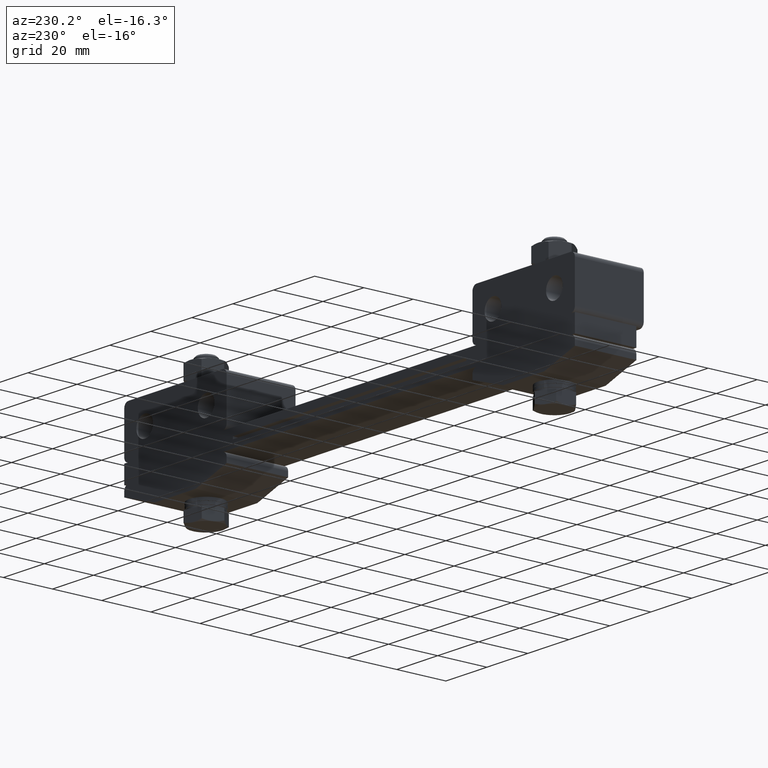
[diagram: clean part render]
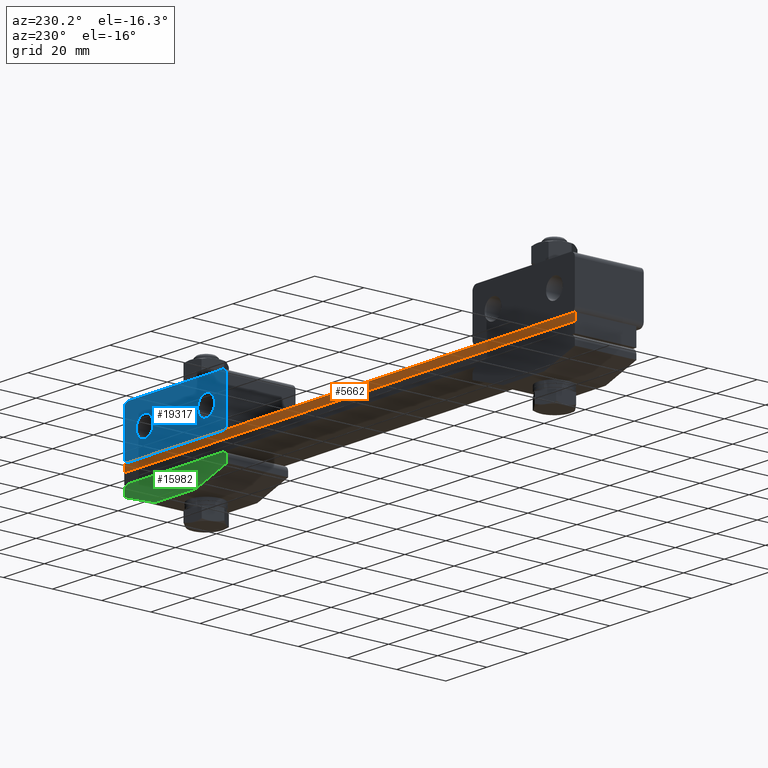
[diagram: same view with three faces highlighted in distinct colors, each labeled with its STEP entity id]
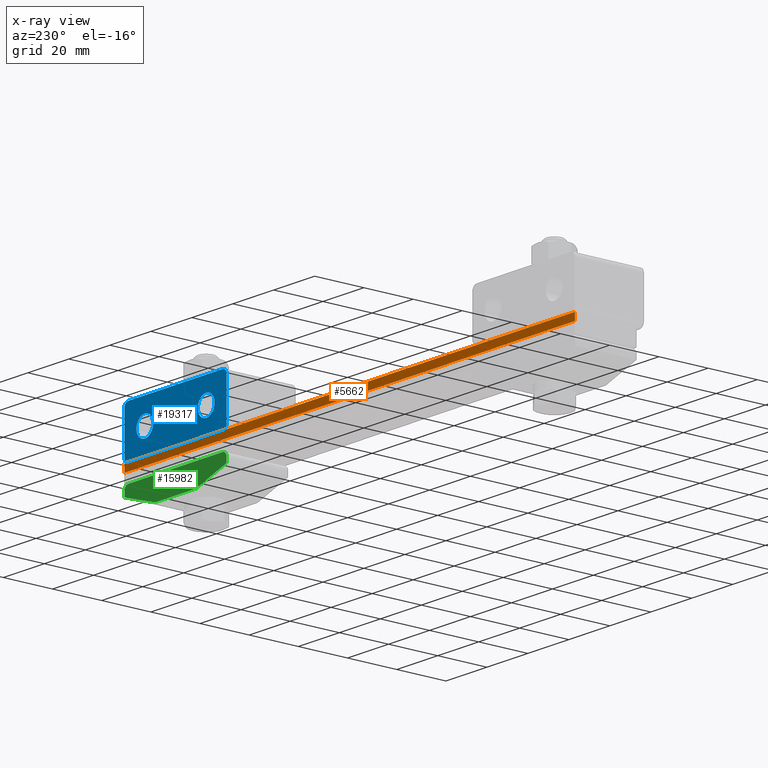
[diagram: x-ray of the same camera — body ghosted, the three highlighted faces saturated]
A machine part, auxiliary view with three faces highlighted in distinct colors.
The next image is the same camera in x-ray (body ghosted, the three faces saturated) — at least one of them is partly hidden behind the body in this view.
Their STEP definitions:

[orange] entity #5662 — the highlighted planar face has unit normal (-0, -1, 0).
#997 = VERTEX_POINT ( 'NONE', #4461 ) ;
#1122 = CARTESIAN_POINT ( 'NONE',  ( -110.0000000000000000, 12.50000000000000000, 7.000000000000000000 ) ) ;
#1951 = EDGE_CURVE ( 'NONE', #12065, #997, #4840, .T. ) ;
#2409 = DIRECTION ( 'NONE',  ( 0.0000000000000000000, 0.0000000000000000000, -1.000000000000000000 ) ) ;
#2631 = LINE ( 'NONE', #1122, #10483 ) ;
#3632 = DIRECTION ( 'NONE',  ( -5.519574696289839900E-017, -1.000000000000000000, 0.0000000000000000000 ) ) ;
#4461 = CARTESIAN_POINT ( 'NONE',  ( 110.0000000000000000, 12.50000000000000000, 4.000000000000000000 ) ) ;
#4840 = LINE ( 'NONE', #13776, #6639 ) ;
#5184 = CARTESIAN_POINT ( 'NONE',  ( -110.0000000000000000, 12.50000000000000000, 7.000000000000000000 ) ) ;
#5574 = VECTOR ( 'NONE', #15312, 1000.000000000000000 ) ;
#5662 = ADVANCED_FACE ( 'NONE', ( #12551 ), #13241, .F. ) ;
#5677 = AXIS2_PLACEMENT_3D ( 'NONE', #19596, #3632, #16216 ) ;
#6639 = VECTOR ( 'NONE', #2409, 1000.000000000000000 ) ;
#8008 = DIRECTION ( 'NONE',  ( 0.0000000000000000000, 0.0000000000000000000, -1.000000000000000000 ) ) ;
#8927 = EDGE_CURVE ( 'NONE', #19803, #10247, #2631, .T. ) ;
#9127 = LINE ( 'NONE', #19630, #14904 ) ;
#9784 = ORIENTED_EDGE ( 'NONE', *, *, #10838, .F. ) ;
#9896 = LINE ( 'NONE', #20115, #5574 ) ;
#10247 = VERTEX_POINT ( 'NONE', #18493 ) ;
#10483 = VECTOR ( 'NONE', #8008, 1000.000000000000000 ) ;
#10838 = EDGE_CURVE ( 'NONE', #12065, #19803, #9896, .T. ) ;
#12065 = VERTEX_POINT ( 'NONE', #19429 ) ;
#12551 = FACE_OUTER_BOUND ( 'NONE', #19052, .T. ) ;
#13241 = PLANE ( 'NONE',  #5677 ) ;
#13776 = CARTESIAN_POINT ( 'NONE',  ( 110.0000000000000000, 12.50000000000000000, 7.000000000000000000 ) ) ;
#14904 = VECTOR ( 'NONE', #20978, 1000.000000000000000 ) ;
#15312 = DIRECTION ( 'NONE',  ( -1.000000000000000000, 5.519574696289839900E-017, 0.0000000000000000000 ) ) ;
#15641 = EDGE_CURVE ( 'NONE', #997, #10247, #9127, .T. ) ;
#16216 = DIRECTION ( 'NONE',  ( 1.000000000000000000, -5.519574696289839900E-017, 0.0000000000000000000 ) ) ;
#16800 = ORIENTED_EDGE ( 'NONE', *, *, #1951, .T. ) ;
#18493 = CARTESIAN_POINT ( 'NONE',  ( -110.0000000000000000, 12.50000000000000000, 4.000000000000000000 ) ) ;
#19052 = EDGE_LOOP ( 'NONE', ( #20469, #19097, #9784, #16800 ) ) ;
#19097 = ORIENTED_EDGE ( 'NONE', *, *, #8927, .F. ) ;
#19429 = CARTESIAN_POINT ( 'NONE',  ( 110.0000000000000000, 12.50000000000000000, 7.000000000000000000 ) ) ;
#19596 = CARTESIAN_POINT ( 'NONE',  ( -110.0000000000000000, 12.50000000000000000, 7.000000000000000000 ) ) ;
#19630 = CARTESIAN_POINT ( 'NONE',  ( -110.0000000000000000, 12.50000000000000000, 4.000000000000000000 ) ) ;
#19803 = VERTEX_POINT ( 'NONE', #5184 ) ;
#20115 = CARTESIAN_POINT ( 'NONE',  ( -110.0000000000000000, 12.50000000000000000, 7.000000000000000000 ) ) ;
#20469 = ORIENTED_EDGE ( 'NONE', *, *, #15641, .T. ) ;
#20978 = DIRECTION ( 'NONE',  ( -1.000000000000000000, 5.519574696289839900E-017, 0.0000000000000000000 ) ) ;

[blue] entity #19317 — the highlighted planar face has unit normal (-0, -1, -0).
#157 = VECTOR ( 'NONE', #15460, 1000.000000000000000 ) ;
#411 = AXIS2_PLACEMENT_3D ( 'NONE', #4105, #13700, #4039 ) ;
#444 = CIRCLE ( 'NONE', #411, 4.099999999999999600 ) ;
#452 = DIRECTION ( 'NONE',  ( 0.0000000000000000000, 0.0000000000000000000, -1.000000000000000000 ) ) ;
#1155 = AXIS2_PLACEMENT_3D ( 'NONE', #4625, #11342, #4827 ) ;
#1420 = EDGE_CURVE ( 'NONE', #14209, #5060, #3102, .T. ) ;
#1761 = CIRCLE ( 'NONE', #2813, 4.099999999999999600 ) ;
#1955 = CARTESIAN_POINT ( 'NONE',  ( 110.0000000000000000, 12.50000000000000000, 27.00000000000000000 ) ) ;
#2165 = VERTEX_POINT ( 'NONE', #2312 ) ;
#2312 = CARTESIAN_POINT ( 'NONE',  ( 70.00000000000000000, 12.50000000000000000, 21.10000000000000100 ) ) ;
#2379 = ORIENTED_EDGE ( 'NONE', *, *, #7091, .F. ) ;
#2385 = VERTEX_POINT ( 'NONE', #11459 ) ;
#2426 = FACE_BOUND ( 'NONE', #4609, .T. ) ;
#2433 = ORIENTED_EDGE ( 'NONE', *, *, #17791, .F. ) ;
#2675 = AXIS2_PLACEMENT_3D ( 'NONE', #4506, #6335, #9499 ) ;
#2813 = AXIS2_PLACEMENT_3D ( 'NONE', #6988, #13274, #3739 ) ;
#3003 = EDGE_LOOP ( 'NONE', ( #4818, #3733, #9443, #4349, #7563, #17028, #2433, #6129 ) ) ;
#3102 = CIRCLE ( 'NONE', #3140, 4.099999999999999600 ) ;
#3140 = AXIS2_PLACEMENT_3D ( 'NONE', #12880, #3196, #14647 ) ;
#3196 = DIRECTION ( 'NONE',  ( 1.554312234475215000E-015, 1.000000000000000000, 0.0000000000000000000 ) ) ;
#3425 = FACE_BOUND ( 'NONE', #5668, .T. ) ;
#3733 = ORIENTED_EDGE ( 'NONE', *, *, #7197, .T. ) ;
#3739 = DIRECTION ( 'NONE',  ( 0.0000000000000000000, 0.0000000000000000000, 1.000000000000000000 ) ) ;
#4039 = DIRECTION ( 'NONE',  ( 0.0000000000000000000, 0.0000000000000000000, 1.000000000000000000 ) ) ;
#4075 = ORIENTED_EDGE ( 'NONE', *, *, #10815, .F. ) ;
#4105 = CARTESIAN_POINT ( 'NONE',  ( 70.00000000000000000, 12.50000000000000000, 17.00000000000000000 ) ) ;
#4349 = ORIENTED_EDGE ( 'NONE', *, *, #5154, .T. ) ;
#4506 = CARTESIAN_POINT ( 'NONE',  ( 108.0000000000000000, 12.50000000000000000, 25.00000000000000000 ) ) ;
#4609 = EDGE_LOOP ( 'NONE', ( #2379, #4075 ) ) ;
#4625 = CARTESIAN_POINT ( 'NONE',  ( 62.00000000000000000, 12.50000000000000000, 25.00000000000000000 ) ) ;
#4818 = ORIENTED_EDGE ( 'NONE', *, *, #7550, .T. ) ;
#4827 = DIRECTION ( 'NONE',  ( 0.0000000000000000000, 0.0000000000000000000, -1.000000000000000000 ) ) ;
#5060 = VERTEX_POINT ( 'NONE', #12905 ) ;
#5154 = EDGE_CURVE ( 'NONE', #20830, #17009, #17654, .T. ) ;
#5287 = PLANE ( 'NONE',  #9586 ) ;
#5300 = DIRECTION ( 'NONE',  ( 0.0000000000000000000, 0.0000000000000000000, -1.000000000000000000 ) ) ;
#5425 = VECTOR ( 'NONE', #8141, 1000.000000000000000 ) ;
#5452 = CARTESIAN_POINT ( 'NONE',  ( 60.00000000000000000, 12.50000000000000000, 27.00000000000000000 ) ) ;
#5596 = DIRECTION ( 'NONE',  ( 1.554312234475215000E-015, 1.000000000000000000, -0.0000000000000000000 ) ) ;
#5668 = EDGE_LOOP ( 'NONE', ( #8274, #6879 ) ) ;
#6129 = ORIENTED_EDGE ( 'NONE', *, *, #14847, .T. ) ;
#6204 = CIRCLE ( 'NONE', #7892, 4.099999999999999600 ) ;
#6254 = AXIS2_PLACEMENT_3D ( 'NONE', #15265, #5596, #16902 ) ;
#6335 = DIRECTION ( 'NONE',  ( 1.554312234475215000E-015, 1.000000000000000000, -0.0000000000000000000 ) ) ;
#6664 = EDGE_CURVE ( 'NONE', #20707, #17009, #12053, .T. ) ;
#6879 = ORIENTED_EDGE ( 'NONE', *, *, #1420, .F. ) ;
#6897 = CARTESIAN_POINT ( 'NONE',  ( 60.00000000000000000, 12.50000000000000000, 27.00000000000000000 ) ) ;
#6957 = VERTEX_POINT ( 'NONE', #11469 ) ;
#6988 = CARTESIAN_POINT ( 'NONE',  ( 70.00000000000000000, 12.50000000000000000, 17.00000000000000000 ) ) ;
#7091 = EDGE_CURVE ( 'NONE', #2165, #13317, #444, .T. ) ;
#7197 = EDGE_CURVE ( 'NONE', #6957, #16492, #17662, .T. ) ;
#7238 = CARTESIAN_POINT ( 'NONE',  ( 108.0000000000000000, 12.50000000000000000, 7.000000000000000000 ) ) ;
#7382 = CIRCLE ( 'NONE', #2675, 2.000000000000001800 ) ;
#7550 = EDGE_CURVE ( 'NONE', #2385, #6957, #8799, .T. ) ;
#7563 = ORIENTED_EDGE ( 'NONE', *, *, #6664, .F. ) ;
#7892 = AXIS2_PLACEMENT_3D ( 'NONE', #9893, #8465, #18007 ) ;
#8141 = DIRECTION ( 'NONE',  ( -1.000000000000000000, -1.554312234475214800E-015, 0.0000000000000000000 ) ) ;
#8274 = ORIENTED_EDGE ( 'NONE', *, *, #8380, .F. ) ;
#8380 = EDGE_CURVE ( 'NONE', #5060, #14209, #6204, .T. ) ;
#8465 = DIRECTION ( 'NONE',  ( 1.554312234475215000E-015, 1.000000000000000000, 0.0000000000000000000 ) ) ;
#8799 = LINE ( 'NONE', #1955, #14320 ) ;
#8946 = EDGE_CURVE ( 'NONE', #16492, #20830, #10246, .T. ) ;
#9443 = ORIENTED_EDGE ( 'NONE', *, *, #8946, .T. ) ;
#9499 = DIRECTION ( 'NONE',  ( 0.0000000000000000000, 0.0000000000000000000, -1.000000000000000000 ) ) ;
#9530 = CARTESIAN_POINT ( 'NONE',  ( 62.00000000000000000, 12.50000000000000000, 27.00000000000000000 ) ) ;
#9586 = AXIS2_PLACEMENT_3D ( 'NONE', #6897, #15084, #452 ) ;
#9893 = CARTESIAN_POINT ( 'NONE',  ( 100.0000000000000000, 12.50000000000000000, 17.00000000000000000 ) ) ;
#9940 = EDGE_CURVE ( 'NONE', #20707, #20929, #17001, .T. ) ;
#10208 = CARTESIAN_POINT ( 'NONE',  ( 108.0000000000000000, 12.50000000000000000, 27.00000000000000000 ) ) ;
#10246 = LINE ( 'NONE', #16047, #5425 ) ;
#10815 = EDGE_CURVE ( 'NONE', #13317, #2165, #1761, .T. ) ;
#11342 = DIRECTION ( 'NONE',  ( 1.554312234475215000E-015, 1.000000000000000000, -0.0000000000000000000 ) ) ;
#11459 = CARTESIAN_POINT ( 'NONE',  ( 110.0000000000000000, 12.50000000000000000, 25.00000000000000000 ) ) ;
#11469 = CARTESIAN_POINT ( 'NONE',  ( 110.0000000000000000, 12.50000000000000000, 9.000000000000000000 ) ) ;
#12053 = LINE ( 'NONE', #20548, #157 ) ;
#12880 = CARTESIAN_POINT ( 'NONE',  ( 100.0000000000000000, 12.50000000000000000, 17.00000000000000000 ) ) ;
#12905 = CARTESIAN_POINT ( 'NONE',  ( 100.0000000000000000, 12.50000000000000000, 21.10000000000000100 ) ) ;
#13274 = DIRECTION ( 'NONE',  ( 1.554312234475215000E-015, 1.000000000000000000, 0.0000000000000000000 ) ) ;
#13317 = VERTEX_POINT ( 'NONE', #13985 ) ;
#13555 = FACE_OUTER_BOUND ( 'NONE', #3003, .T. ) ;
#13700 = DIRECTION ( 'NONE',  ( 1.554312234475215000E-015, 1.000000000000000000, 0.0000000000000000000 ) ) ;
#13985 = CARTESIAN_POINT ( 'NONE',  ( 69.99999999999998600, 12.50000000000000000, 12.90000000000000200 ) ) ;
#14209 = VERTEX_POINT ( 'NONE', #20274 ) ;
#14320 = VECTOR ( 'NONE', #5300, 1000.000000000000000 ) ;
#14598 = AXIS2_PLACEMENT_3D ( 'NONE', #19745, #19898, #18374 ) ;
#14647 = DIRECTION ( 'NONE',  ( 0.0000000000000000000, 0.0000000000000000000, 1.000000000000000000 ) ) ;
#14847 = EDGE_CURVE ( 'NONE', #16827, #2385, #7382, .T. ) ;
#15084 = DIRECTION ( 'NONE',  ( -1.554312234475214800E-015, -1.000000000000000000, -0.0000000000000000000 ) ) ;
#15265 = CARTESIAN_POINT ( 'NONE',  ( 108.0000000000000000, 12.50000000000000000, 9.000000000000000000 ) ) ;
#15283 = LINE ( 'NONE', #5452, #16038 ) ;
#15460 = DIRECTION ( 'NONE',  ( 0.0000000000000000000, 0.0000000000000000000, -1.000000000000000000 ) ) ;
#16038 = VECTOR ( 'NONE', #16752, 1000.000000000000000 ) ;
#16047 = CARTESIAN_POINT ( 'NONE',  ( 60.00000000000000000, 12.50000000000000000, 7.000000000000000000 ) ) ;
#16492 = VERTEX_POINT ( 'NONE', #7238 ) ;
#16752 = DIRECTION ( 'NONE',  ( -1.000000000000000000, -1.554312234475214800E-015, 0.0000000000000000000 ) ) ;
#16827 = VERTEX_POINT ( 'NONE', #10208 ) ;
#16902 = DIRECTION ( 'NONE',  ( 0.0000000000000000000, 0.0000000000000000000, -1.000000000000000000 ) ) ;
#17001 = CIRCLE ( 'NONE', #1155, 2.000000000000001800 ) ;
#17009 = VERTEX_POINT ( 'NONE', #18899 ) ;
#17028 = ORIENTED_EDGE ( 'NONE', *, *, #9940, .T. ) ;
#17194 = CARTESIAN_POINT ( 'NONE',  ( 62.00000000000000000, 12.50000000000000000, 7.000000000000000000 ) ) ;
#17654 = CIRCLE ( 'NONE', #14598, 2.000000000000000000 ) ;
#17662 = CIRCLE ( 'NONE', #6254, 2.000000000000000000 ) ;
#17791 = EDGE_CURVE ( 'NONE', #16827, #20929, #15283, .T. ) ;
#18007 = DIRECTION ( 'NONE',  ( 0.0000000000000000000, 0.0000000000000000000, 1.000000000000000000 ) ) ;
#18374 = DIRECTION ( 'NONE',  ( 0.0000000000000000000, 0.0000000000000000000, -1.000000000000000000 ) ) ;
#18579 = CARTESIAN_POINT ( 'NONE',  ( 60.00000000000000000, 12.50000000000000000, 25.00000000000000000 ) ) ;
#18899 = CARTESIAN_POINT ( 'NONE',  ( 60.00000000000000000, 12.50000000000000000, 9.000000000000000000 ) ) ;
#19317 = ADVANCED_FACE ( 'NONE', ( #2426, #3425, #13555 ), #5287, .F. ) ;
#19745 = CARTESIAN_POINT ( 'NONE',  ( 62.00000000000000000, 12.50000000000000000, 9.000000000000000000 ) ) ;
#19898 = DIRECTION ( 'NONE',  ( 1.554312234475215000E-015, 1.000000000000000000, -0.0000000000000000000 ) ) ;
#20274 = CARTESIAN_POINT ( 'NONE',  ( 99.99999999999997200, 12.50000000000000000, 12.90000000000000200 ) ) ;
#20548 = CARTESIAN_POINT ( 'NONE',  ( 60.00000000000000000, 12.50000000000000000, 27.00000000000000000 ) ) ;
#20707 = VERTEX_POINT ( 'NONE', #18579 ) ;
#20830 = VERTEX_POINT ( 'NONE', #17194 ) ;
#20929 = VERTEX_POINT ( 'NONE', #9530 ) ;

[green] entity #15982 — the highlighted planar face has unit normal (0, -1, 0).
#49 = EDGE_CURVE ( 'NONE', #3666, #16584, #881, .T. ) ;
#341 = CARTESIAN_POINT ( 'NONE',  ( 110.0000000000000000, 12.50000000000000000, -2.000000000000000000 ) ) ;
#881 = LINE ( 'NONE', #6313, #9020 ) ;
#962 = CARTESIAN_POINT ( 'NONE',  ( 62.00000000000000000, 12.50000000000000000, -2.000000000000000000 ) ) ;
#1025 = DIRECTION ( 'NONE',  ( -0.0000000000000000000, 1.000000000000000000, -0.0000000000000000000 ) ) ;
#1085 = CARTESIAN_POINT ( 'NONE',  ( 75.00000000000000000, 12.50000000000000000, -9.000000000000000000 ) ) ;
#1164 = DIRECTION ( 'NONE',  ( 0.0000000000000000000, -1.000000000000000000, 0.0000000000000000000 ) ) ;
#1310 = VECTOR ( 'NONE', #13404, 1000.000000000000000 ) ;
#1492 = VECTOR ( 'NONE', #3777, 1000.000000000000000 ) ;
#1968 = DIRECTION ( 'NONE',  ( -0.9486832980505137700, 0.0000000000000000000, 0.3162277660168380000 ) ) ;
#2187 = EDGE_LOOP ( 'NONE', ( #20348, #11032, #17248, #9343, #2833, #19363, #7083, #6633 ) ) ;
#2297 = AXIS2_PLACEMENT_3D ( 'NONE', #18988, #1164, #4373 ) ;
#2332 = VERTEX_POINT ( 'NONE', #9597 ) ;
#2337 = VERTEX_POINT ( 'NONE', #19485 ) ;
#2833 = ORIENTED_EDGE ( 'NONE', *, *, #9184, .T. ) ;
#3666 = VERTEX_POINT ( 'NONE', #341 ) ;
#3777 = DIRECTION ( 'NONE',  ( 0.0000000000000000000, 0.0000000000000000000, -1.000000000000000000 ) ) ;
#4232 = EDGE_CURVE ( 'NONE', #2332, #7905, #12616, .T. ) ;
#4373 = DIRECTION ( 'NONE',  ( 0.0000000000000000000, 0.0000000000000000000, -1.000000000000000000 ) ) ;
#4438 = DIRECTION ( 'NONE',  ( 0.0000000000000000000, 0.0000000000000000000, -1.000000000000000000 ) ) ;
#5508 = CARTESIAN_POINT ( 'NONE',  ( 60.00000000000000000, 12.50000000000000000, 0.0000000000000000000 ) ) ;
#6313 = CARTESIAN_POINT ( 'NONE',  ( 110.0000000000000000, 12.50000000000000000, 0.0000000000000000000 ) ) ;
#6427 = EDGE_CURVE ( 'NONE', #16584, #2337, #17368, .T. ) ;
#6453 = DIRECTION ( 'NONE',  ( -0.0000000000000000000, 1.000000000000000000, -0.0000000000000000000 ) ) ;
#6633 = ORIENTED_EDGE ( 'NONE', *, *, #15928, .T. ) ;
#6829 = CARTESIAN_POINT ( 'NONE',  ( 60.00000000000000000, 12.50000000000000000, 0.0000000000000000000 ) ) ;
#6847 = CARTESIAN_POINT ( 'NONE',  ( 58.79999999999999700, 12.50000000000000000, -3.600000000000000100 ) ) ;
#7083 = ORIENTED_EDGE ( 'NONE', *, *, #4232, .F. ) ;
#7422 = PLANE ( 'NONE',  #2297 ) ;
#7590 = FACE_OUTER_BOUND ( 'NONE', #2187, .T. ) ;
#7905 = VERTEX_POINT ( 'NONE', #17557 ) ;
#8091 = CIRCLE ( 'NONE', #16095, 2.000000000000000000 ) ;
#8338 = CARTESIAN_POINT ( 'NONE',  ( 66.19999999999998900, 12.50000000000000000, -18.59999999999999800 ) ) ;
#8437 = LINE ( 'NONE', #6829, #1310 ) ;
#9020 = VECTOR ( 'NONE', #16131, 1000.000000000000000 ) ;
#9041 = VECTOR ( 'NONE', #16527, 999.9999999999998900 ) ;
#9184 = EDGE_CURVE ( 'NONE', #2337, #20273, #15011, .T. ) ;
#9343 = ORIENTED_EDGE ( 'NONE', *, *, #6427, .T. ) ;
#9597 = CARTESIAN_POINT ( 'NONE',  ( 60.00000000000000000, 12.50000000000000000, -2.000000000000000000 ) ) ;
#9672 = CARTESIAN_POINT ( 'NONE',  ( 108.0000000000000000, 12.50000000000000000, -2.000000000000000000 ) ) ;
#11032 = ORIENTED_EDGE ( 'NONE', *, *, #19614, .T. ) ;
#12609 = VERTEX_POINT ( 'NONE', #18397 ) ;
#12616 = LINE ( 'NONE', #5508, #1492 ) ;
#13404 = DIRECTION ( 'NONE',  ( -1.000000000000000000, 0.0000000000000000000, 0.0000000000000000000 ) ) ;
#13635 = DIRECTION ( 'NONE',  ( -1.000000000000000000, 0.0000000000000000000, 0.0000000000000000000 ) ) ;
#14199 = CARTESIAN_POINT ( 'NONE',  ( 110.0000000000000000, 12.50000000000000000, -4.000000000000000000 ) ) ;
#14502 = VECTOR ( 'NONE', #13635, 1000.000000000000000 ) ;
#14753 = VERTEX_POINT ( 'NONE', #15670 ) ;
#15011 = LINE ( 'NONE', #17972, #14502 ) ;
#15670 = CARTESIAN_POINT ( 'NONE',  ( 108.0000000000000000, 12.50000000000000000, 0.0000000000000000000 ) ) ;
#15719 = EDGE_CURVE ( 'NONE', #20273, #7905, #18500, .T. ) ;
#15928 = EDGE_CURVE ( 'NONE', #2332, #12609, #8091, .T. ) ;
#15982 = ADVANCED_FACE ( 'NONE', ( #7590 ), #7422, .F. ) ;
#16095 = AXIS2_PLACEMENT_3D ( 'NONE', #962, #1025, #4438 ) ;
#16131 = DIRECTION ( 'NONE',  ( 0.0000000000000000000, 0.0000000000000000000, -1.000000000000000000 ) ) ;
#16527 = DIRECTION ( 'NONE',  ( -0.9486832980505137700, 0.0000000000000000000, -0.3162277660168380000 ) ) ;
#16584 = VERTEX_POINT ( 'NONE', #14199 ) ;
#17248 = ORIENTED_EDGE ( 'NONE', *, *, #49, .T. ) ;
#17368 = LINE ( 'NONE', #8338, #9041 ) ;
#17557 = CARTESIAN_POINT ( 'NONE',  ( 60.00000000000000000, 12.50000000000000000, -4.000000000000000000 ) ) ;
#17679 = AXIS2_PLACEMENT_3D ( 'NONE', #9672, #6453, #17698 ) ;
#17698 = DIRECTION ( 'NONE',  ( 0.0000000000000000000, 0.0000000000000000000, -1.000000000000000000 ) ) ;
#17972 = CARTESIAN_POINT ( 'NONE',  ( 60.00000000000000000, 12.50000000000000000, -9.000000000000000000 ) ) ;
#18214 = VECTOR ( 'NONE', #1968, 999.9999999999998900 ) ;
#18318 = EDGE_CURVE ( 'NONE', #14753, #12609, #8437, .T. ) ;
#18397 = CARTESIAN_POINT ( 'NONE',  ( 62.00000000000000000, 12.50000000000000000, 0.0000000000000000000 ) ) ;
#18500 = LINE ( 'NONE', #6847, #18214 ) ;
#18905 = CIRCLE ( 'NONE', #17679, 2.000000000000000000 ) ;
#18988 = CARTESIAN_POINT ( 'NONE',  ( 60.00000000000000000, 12.50000000000000000, 0.0000000000000000000 ) ) ;
#19363 = ORIENTED_EDGE ( 'NONE', *, *, #15719, .T. ) ;
#19485 = CARTESIAN_POINT ( 'NONE',  ( 95.00000000000000000, 12.50000000000000000, -9.000000000000000000 ) ) ;
#19614 = EDGE_CURVE ( 'NONE', #14753, #3666, #18905, .T. ) ;
#20273 = VERTEX_POINT ( 'NONE', #1085 ) ;
#20348 = ORIENTED_EDGE ( 'NONE', *, *, #18318, .F. ) ;